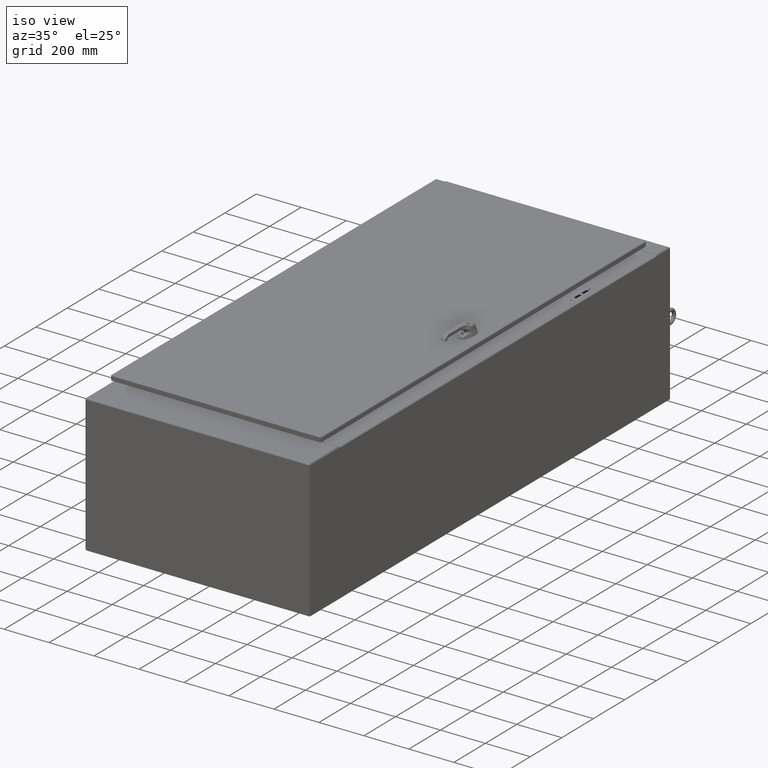
[diagram: clean part render]
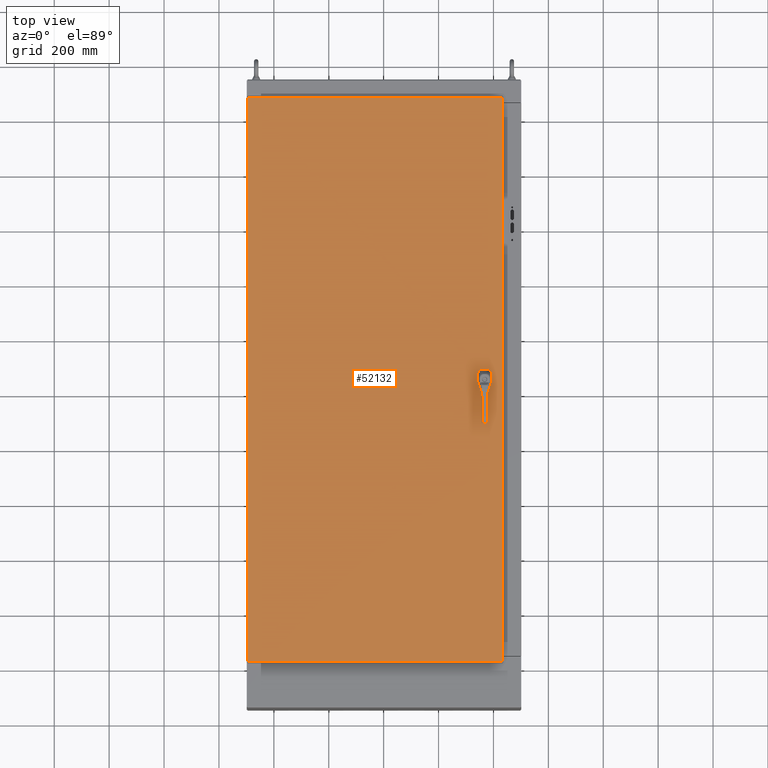
[diagram: tour spotlight — one face highlighted and labeled with its STEP entity id]
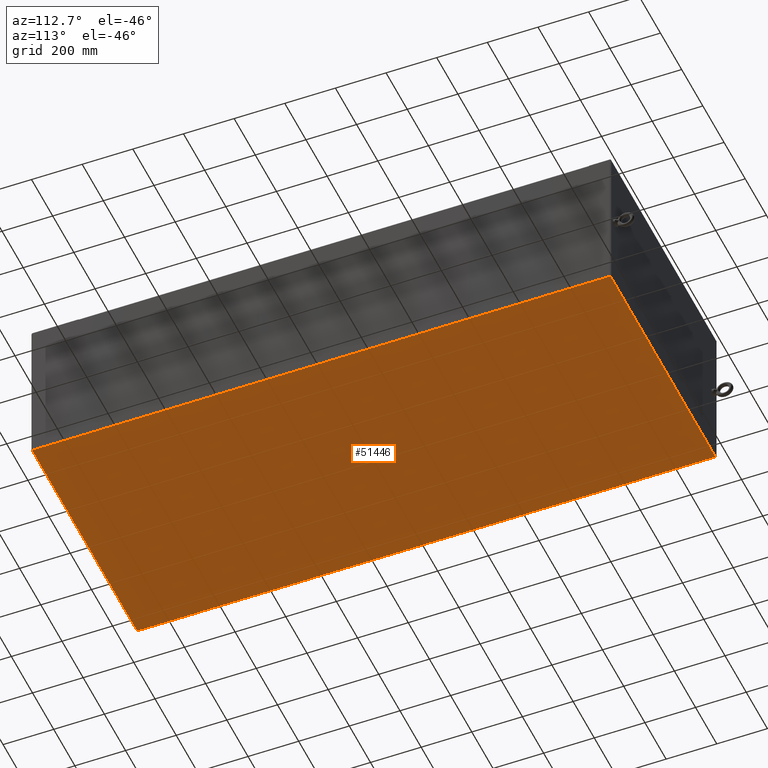
[diagram: tour spotlight — one face highlighted and labeled with its STEP entity id]
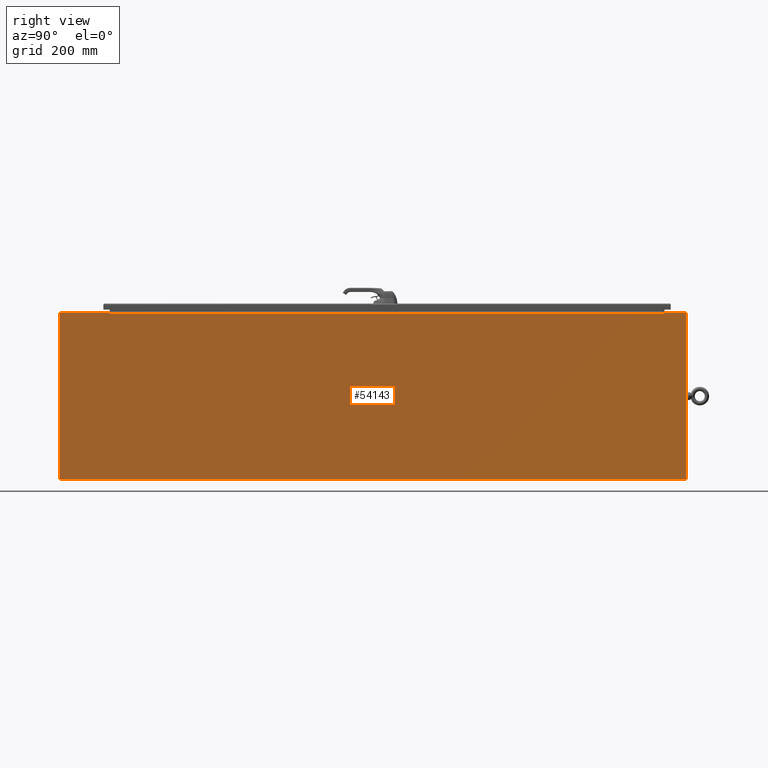
[diagram: tour spotlight — one face highlighted and labeled with its STEP entity id]
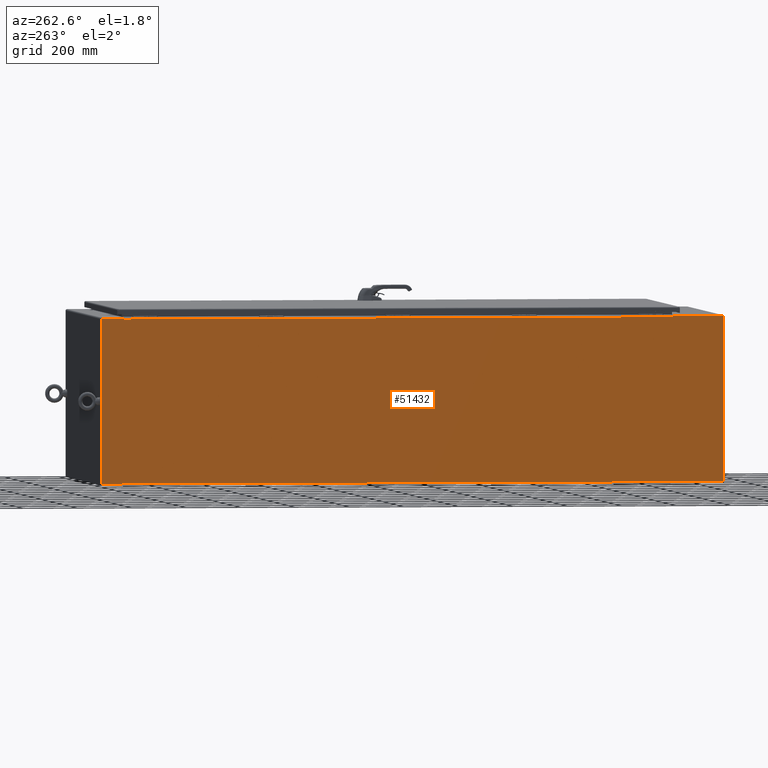
[diagram: tour spotlight — one face highlighted and labeled with its STEP entity id]
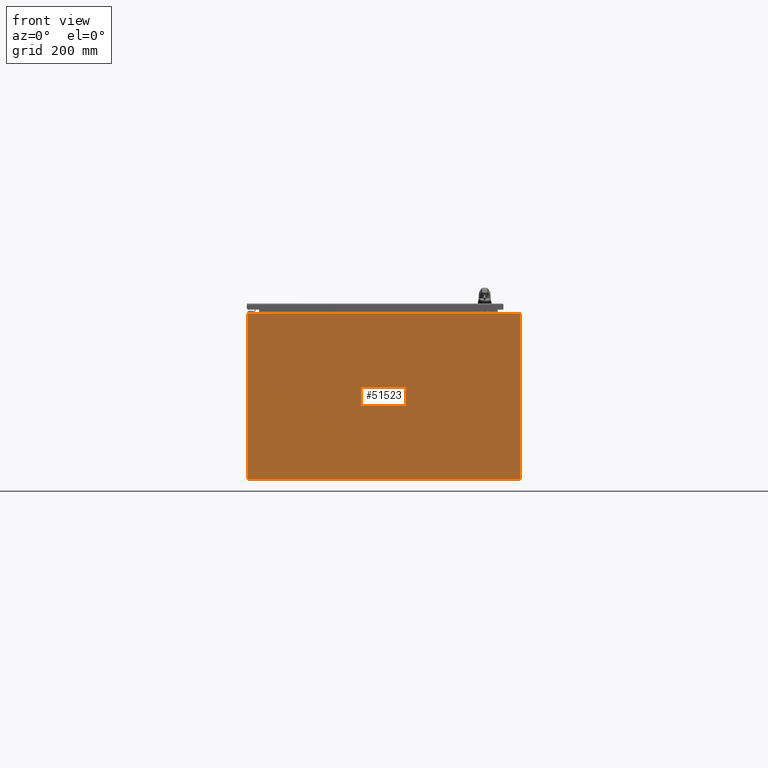
[diagram: tour spotlight — one face highlighted and labeled with its STEP entity id]
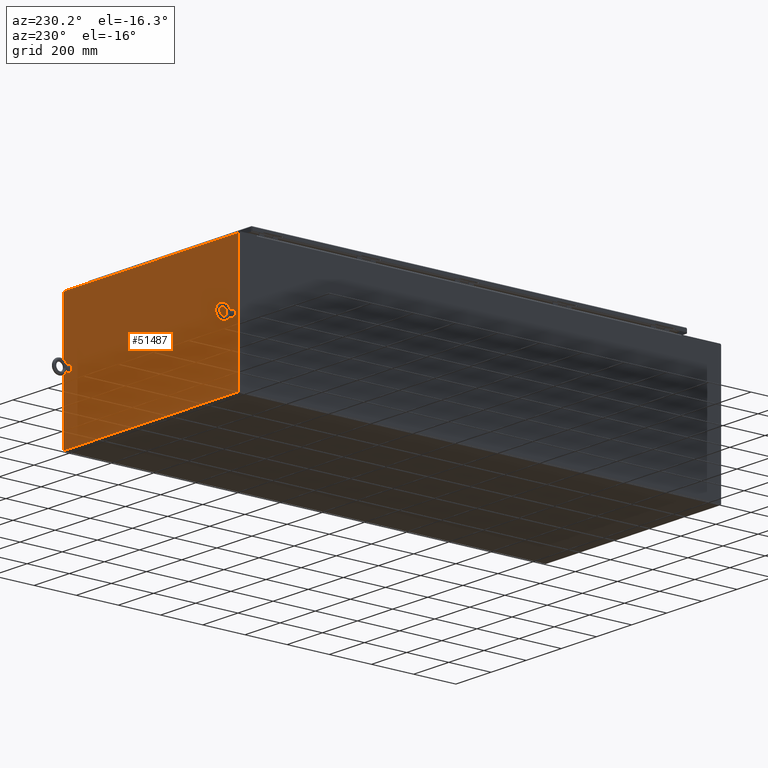
[diagram: tour spotlight — one face highlighted and labeled with its STEP entity id]
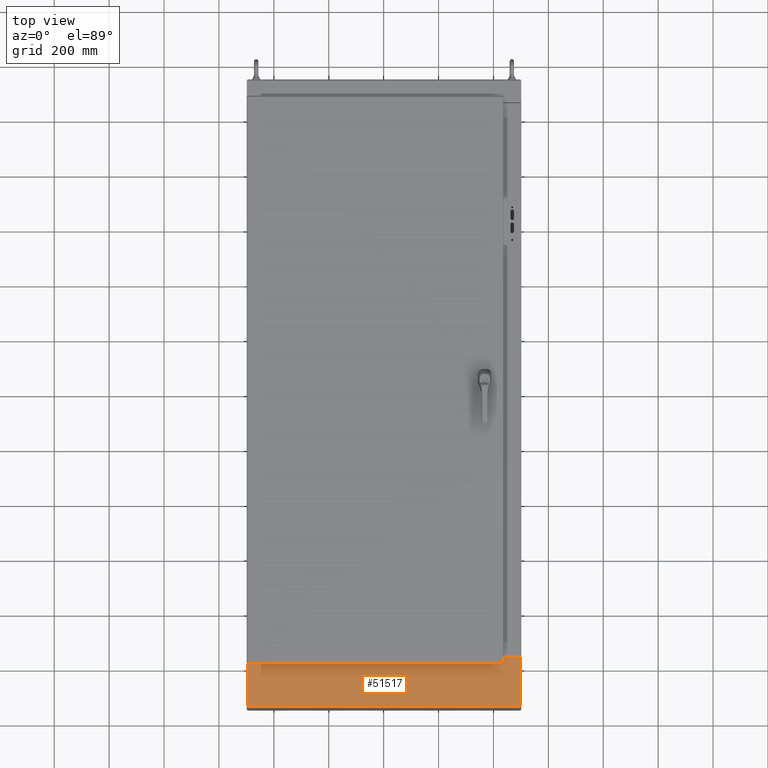
[diagram: tour spotlight — one face highlighted and labeled with its STEP entity id]
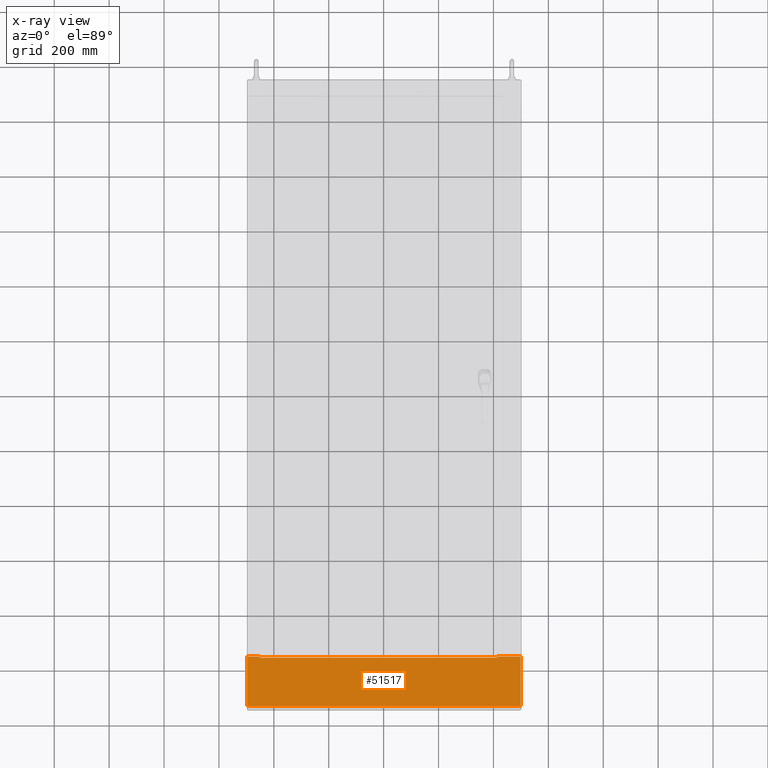
[diagram: x-ray of the same camera — body ghosted, this tour face saturated]
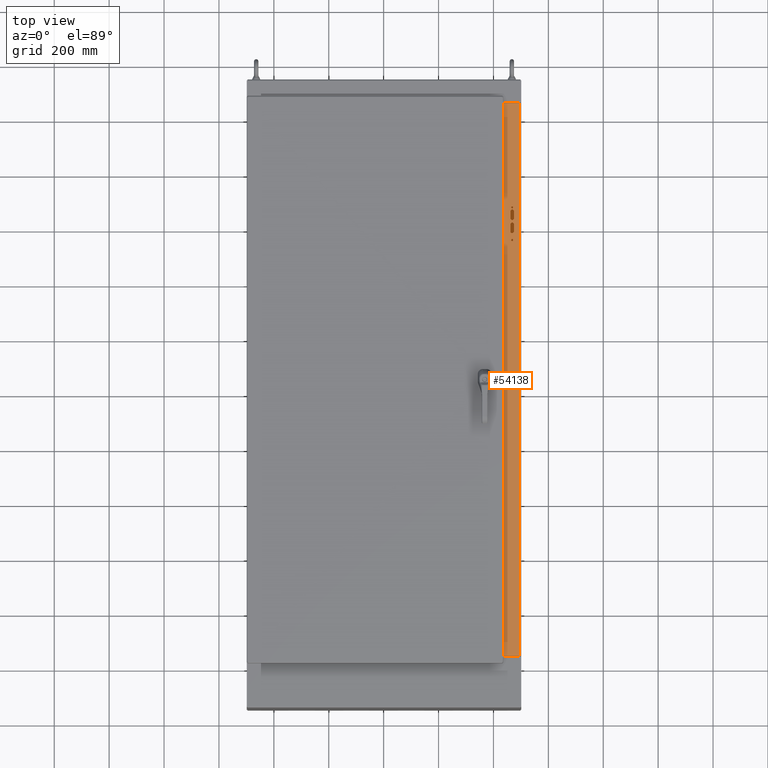
[diagram: tour spotlight — one face highlighted and labeled with its STEP entity id]
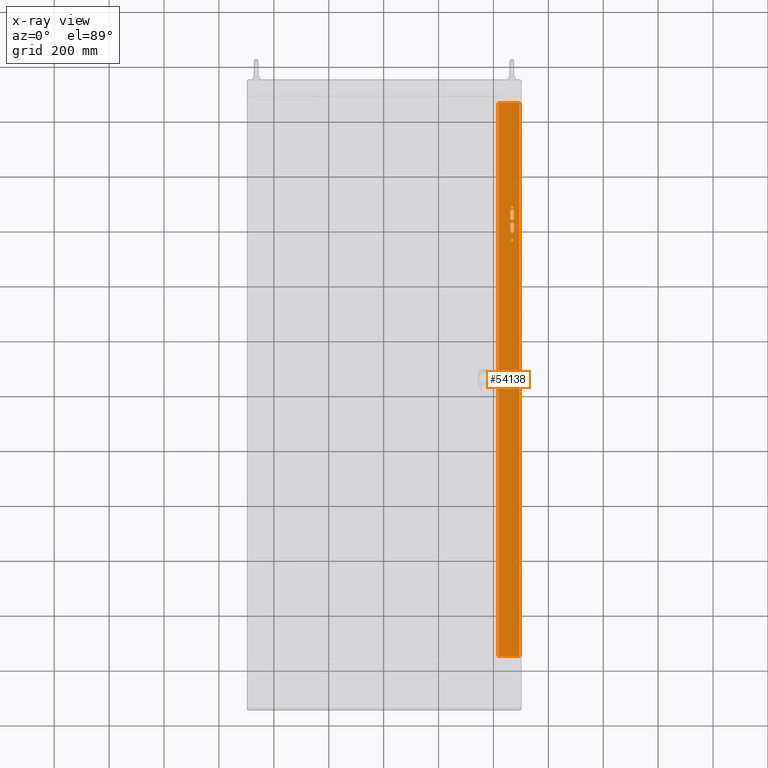
[diagram: x-ray of the same camera — body ghosted, this tour face saturated]
A machine part: a face-by-face anatomy tour. The part has 5560 B-rep faces; the first image is the clean iso view, then the 8 largest visible faces are spotlighted one at a time (largest first), each with its STEP entity span.

Face 1 — top view, entity #52132. In plain terms, the highlighted planar face has unit normal (-0, -0, 1).
Definition (entity closure, byte-faithful):
#3029=FACE_BOUND('',#8426,.T.);
#3030=FACE_BOUND('',#8427,.T.);
#3031=FACE_BOUND('',#8428,.T.);
#3032=FACE_BOUND('',#8429,.T.);
#3583=PLANE('',#57392);
#5145=FACE_OUTER_BOUND('',#8425,.T.);
#8425=EDGE_LOOP('',(#37758,#37759,#37760,#37761));
#8426=EDGE_LOOP('',(#37762));
#8427=EDGE_LOOP('',(#37763));
#8428=EDGE_LOOP('',(#37764));
#8429=EDGE_LOOP('',(#37765,#37766,#37767,#37768,#37769,#37770,#37771,#37772));
#12055=LINE('',#85400,#15710);
#12059=LINE('',#85412,#15714);
#12063=LINE('',#85424,#15718);
#12067=LINE('',#85435,#15722);
#12076=LINE('',#85465,#15731);
#12092=LINE('',#85587,#15747);
#12106=LINE('',#85704,#15761);
#12111=LINE('',#85803,#15766);
#15710=VECTOR('',#65862,0.393700787401575);
#15714=VECTOR('',#65874,0.393700787401575);
#15718=VECTOR('',#65886,0.393700787401575);
#15722=VECTOR('',#65898,0.393700787401575);
#15731=VECTOR('',#65915,0.393700787401575);
#15747=VECTOR('',#65945,0.393700787401575);
#15761=VECTOR('',#65973,0.393700787401575);
#15766=VECTOR('',#65984,0.393700787401575);
#18946=CIRCLE('',#57341,0.1405);
#18948=CIRCLE('',#57344,0.1405);
#18950=CIRCLE('',#57347,0.1405);
#18952=CIRCLE('',#57350,0.453);
#18954=CIRCLE('',#57354,0.453);
#18956=CIRCLE('',#57358,0.453);
#18958=CIRCLE('',#57362,0.453);
#22474=VERTEX_POINT('',#85372);
#22476=VERTEX_POINT('',#85378);
#22478=VERTEX_POINT('',#85384);
#22480=VERTEX_POINT('',#85390);
#22481=VERTEX_POINT('',#85391);
#22484=VERTEX_POINT('',#85399);
#22486=VERTEX_POINT('',#85405);
#22488=VERTEX_POINT('',#85411);
#22490=VERTEX_POINT('',#85417);
#22492=VERTEX_POINT('',#85423);
#22494=VERTEX_POINT('',#85429);
#22501=VERTEX_POINT('',#85453);
#22502=VERTEX_POINT('',#85464);
#22513=VERTEX_POINT('',#85576);
#22521=VERTEX_POINT('',#85693);
#27962=EDGE_CURVE('',#22474,#22474,#18946,.T.);
#27965=EDGE_CURVE('',#22476,#22476,#18948,.T.);
#27968=EDGE_CURVE('',#22478,#22478,#18950,.T.);
#27971=EDGE_CURVE('',#22480,#22481,#18952,.T.);
#27975=EDGE_CURVE('',#22484,#22480,#12055,.T.);
#27978=EDGE_CURVE('',#22486,#22484,#18954,.T.);
#27981=EDGE_CURVE('',#22488,#22486,#12059,.T.);
#27984=EDGE_CURVE('',#22490,#22488,#18956,.T.);
#27987=EDGE_CURVE('',#22492,#22490,#12063,.T.);
#27990=EDGE_CURVE('',#22494,#22492,#18958,.T.);
#27993=EDGE_CURVE('',#22481,#22494,#12067,.T.);
#28003=EDGE_CURVE('',#22502,#22501,#12076,.T.);
#28023=EDGE_CURVE('',#22501,#22513,#12092,.T.);
#28041=EDGE_CURVE('',#22513,#22521,#12106,.T.);
#28050=EDGE_CURVE('',#22521,#22502,#12111,.T.);
#37758=ORIENTED_EDGE('',*,*,#28003,.T.);
#37759=ORIENTED_EDGE('',*,*,#28023,.T.);
#37760=ORIENTED_EDGE('',*,*,#28041,.T.);
#37761=ORIENTED_EDGE('',*,*,#28050,.T.);
#37762=ORIENTED_EDGE('',*,*,#27962,.T.);
#37763=ORIENTED_EDGE('',*,*,#27965,.T.);
#37764=ORIENTED_EDGE('',*,*,#27968,.T.);
#37765=ORIENTED_EDGE('',*,*,#27971,.T.);
#37766=ORIENTED_EDGE('',*,*,#27993,.T.);
#37767=ORIENTED_EDGE('',*,*,#27990,.T.);
#37768=ORIENTED_EDGE('',*,*,#27987,.T.);
#37769=ORIENTED_EDGE('',*,*,#27984,.T.);
#37770=ORIENTED_EDGE('',*,*,#27981,.T.);
#37771=ORIENTED_EDGE('',*,*,#27978,.T.);
#37772=ORIENTED_EDGE('',*,*,#27975,.T.);
#52132=ADVANCED_FACE('',(#5145,#3029,#3030,#3031,#3032),#3583,.T.);
#57341=AXIS2_PLACEMENT_3D('',#85373,#65833,#65834);
#57344=AXIS2_PLACEMENT_3D('',#85379,#65840,#65841);
#57347=AXIS2_PLACEMENT_3D('',#85385,#65847,#65848);
#57350=AXIS2_PLACEMENT_3D('',#85392,#65854,#65855);
#57354=AXIS2_PLACEMENT_3D('',#85406,#65867,#65868);
#57358=AXIS2_PLACEMENT_3D('',#85418,#65879,#65880);
#57362=AXIS2_PLACEMENT_3D('',#85430,#65891,#65892);
#57392=AXIS2_PLACEMENT_3D('',#85906,#66009,#66010);
#65833=DIRECTION('center_axis',(0.,0.,-1.));
#65834=DIRECTION('ref_axis',(-1.,0.,0.));
#65840=DIRECTION('center_axis',(0.,0.,-1.));
#65841=DIRECTION('ref_axis',(-1.,0.,0.));
#65847=DIRECTION('center_axis',(0.,0.,-1.));
#65848=DIRECTION('ref_axis',(-1.,0.,0.));
#65854=DIRECTION('center_axis',(0.,0.,-1.));
#65855=DIRECTION('ref_axis',(-0.883002207505519,-0.469368833158296,0.));
#65862=DIRECTION('',(-1.,0.,0.));
#65867=DIRECTION('center_axis',(0.,0.,-1.));
#65868=DIRECTION('ref_axis',(0.469368833158296,-0.883002207505519,0.));
#65874=DIRECTION('',(0.,-1.,0.));
#65879=DIRECTION('center_axis',(0.,0.,-1.));
#65880=DIRECTION('ref_axis',(0.883002207505519,0.469368833158297,0.));
#65886=DIRECTION('',(1.,-2.055720481263E-16,0.));
#65891=DIRECTION('center_axis',(0.,0.,-1.));
#65892=DIRECTION('ref_axis',(-0.469368833158297,0.883002207505518,0.));
#65898=DIRECTION('',(-4.11144096252601E-16,1.,0.));
#65915=DIRECTION('',(-1.38178790706893E-16,1.,0.));
#65945=DIRECTION('',(-1.,0.,0.));
#65973=DIRECTION('',(2.76357581413786E-16,-1.,0.));
#65984=DIRECTION('',(1.,0.,0.));
#66009=DIRECTION('center_axis',(0.,0.,1.));
#66010=DIRECTION('ref_axis',(1.,0.,0.));
#85372=CARTESIAN_POINT('',(15.85925,-1.377,0.104));
#85373=CARTESIAN_POINT('Origin',(15.71875,-1.377,0.104));
#85378=CARTESIAN_POINT('',(15.85925,0.885,0.104));
#85379=CARTESIAN_POINT('Origin',(15.71875,0.885,0.104));
#85384=CARTESIAN_POINT('',(15.85925,-0.885,0.104));
#85385=CARTESIAN_POINT('Origin',(15.71875,-0.885,0.104));
#85390=CARTESIAN_POINT('',(15.5061259185793,-0.4,0.104));
#85391=CARTESIAN_POINT('',(15.31875,-0.212624081420708,0.104));
#85392=CARTESIAN_POINT('Origin',(15.71875,0.,0.104));
#85399=CARTESIAN_POINT('',(15.9313740814207,-0.4,0.104));
#85400=CARTESIAN_POINT('',(7.96568704071036,-0.4,0.104));
#85405=CARTESIAN_POINT('',(16.11875,-0.212624081420708,0.104));
#85406=CARTESIAN_POINT('Origin',(15.71875,0.,0.104));
#85411=CARTESIAN_POINT('',(16.11875,0.212624081420708,0.104));
#85412=CARTESIAN_POINT('',(16.11875,0.106312040710356,0.104));
#85417=CARTESIAN_POINT('',(15.9313740814207,0.4,0.104));
#85418=CARTESIAN_POINT('Origin',(15.71875,0.,0.104));
#85423=CARTESIAN_POINT('',(15.5061259185793,0.4,0.104));
#85424=CARTESIAN_POINT('',(7.75306295928965,0.400000000000001,0.104));
#85429=CARTESIAN_POINT('',(15.31875,0.212624081420708,0.104));
#85430=CARTESIAN_POINT('Origin',(15.71875,0.,0.104));
#85435=CARTESIAN_POINT('',(15.31875,-0.10631204071035,0.104));
#85453=CARTESIAN_POINT('',(18.2085,40.48975,0.104));
#85464=CARTESIAN_POINT('',(18.2085,-40.48975,0.104));
#85465=CARTESIAN_POINT('',(18.2085,-20.244875,0.104));
#85576=CARTESIAN_POINT('',(-18.2085,40.48975,0.104));
#85587=CARTESIAN_POINT('',(9.10425,40.48975,0.104));
#85693=CARTESIAN_POINT('',(-18.2085,-40.48975,0.104));
#85704=CARTESIAN_POINT('',(-18.2085,20.244875,0.104));
#85803=CARTESIAN_POINT('',(-9.10424999999999,-40.48975,0.104));
#85906=CARTESIAN_POINT('Origin',(1.3987061727561E-15,2.7994968554567E-15,
0.104));

Face 2 — auxiliary view, entity #51446. In plain terms, the highlighted planar face has unit normal (0, 0, 1).
Definition (entity closure, byte-faithful):
#3214=PLANE('',#56060);
#4459=FACE_OUTER_BOUND('',#7643,.T.);
#7643=EDGE_LOOP('',(#34204,#34205,#34206,#34207));
#11082=LINE('',#78075,#14737);
#11088=LINE('',#78093,#14743);
#11091=LINE('',#78099,#14746);
#11092=LINE('',#78100,#14747);
#14737=VECTOR('',#62285,0.393700787401575);
#14743=VECTOR('',#62309,0.393700787401575);
#14746=VECTOR('',#62314,0.393700787401575);
#14747=VECTOR('',#62315,0.393700787401575);
#21351=VERTEX_POINT('',#78072);
#21352=VERTEX_POINT('',#78074);
#21355=VERTEX_POINT('',#78092);
#21357=VERTEX_POINT('',#78098);
#26265=EDGE_CURVE('',#21352,#21351,#11082,.T.);
#26274=EDGE_CURVE('',#21352,#21355,#11088,.T.);
#26277=EDGE_CURVE('',#21357,#21351,#11091,.T.);
#26278=EDGE_CURVE('',#21355,#21357,#11092,.T.);
#34204=ORIENTED_EDGE('',*,*,#26265,.T.);
#34205=ORIENTED_EDGE('',*,*,#26277,.F.);
#34206=ORIENTED_EDGE('',*,*,#26278,.F.);
#34207=ORIENTED_EDGE('',*,*,#26274,.F.);
#51446=ADVANCED_FACE('',(#4459),#3214,.F.);
#56060=AXIS2_PLACEMENT_3D('',#78097,#62312,#62313);
#62285=DIRECTION('',(-3.11110506968894E-16,1.,0.));
#62309=DIRECTION('',(1.,0.,0.));
#62312=DIRECTION('center_axis',(0.,0.,1.));
#62313=DIRECTION('ref_axis',(1.,0.,0.));
#62314=DIRECTION('',(-1.,0.,0.));
#62315=DIRECTION('',(-1.86666304181337E-16,1.,0.));
#78072=CARTESIAN_POINT('',(-19.390875,44.9585,0.));
#78074=CARTESIAN_POINT('',(-19.390875,-44.9585,0.));
#78075=CARTESIAN_POINT('',(-19.390875,-22.47925,0.));
#78092=CARTESIAN_POINT('',(19.6355,-44.9585,0.));
#78093=CARTESIAN_POINT('',(-19.6355,-44.9585,0.));
#78097=CARTESIAN_POINT('Origin',(-2.79741234551221E-15,-5.61215167570438E-15,
0.));
#78098=CARTESIAN_POINT('',(19.6355,44.9585,0.));
#78099=CARTESIAN_POINT('',(19.6355,44.9585,0.));
#78100=CARTESIAN_POINT('',(19.6355,-44.9585,0.));

Face 3 — right view, entity #54143. In plain terms, the highlighted planar face has unit normal (1, 0, 0).
Definition (entity closure, byte-faithful):
#4271=PLANE('',#61360);
#7156=FACE_OUTER_BOUND('',#10563,.T.);
#10563=EDGE_LOOP('',(#47420,#47421,#47422,#47423,#47424,#47425,#47426,#47427,
#47428,#47429,#47430,#47431));
#14183=LINE('',#145768,#17838);
#14189=LINE('',#145786,#17844);
#14192=LINE('',#145793,#17847);
#14196=LINE('',#145800,#17851);
#14198=LINE('',#145804,#17853);
#14199=LINE('',#145806,#17854);
#14200=LINE('',#145808,#17855);
#14201=LINE('',#145810,#17856);
#14202=LINE('',#145812,#17857);
#14203=LINE('',#145814,#17858);
#14204=LINE('',#145816,#17859);
#14205=LINE('',#145817,#17860);
#17838=VECTOR('',#75982,0.393700787401575);
#17844=VECTOR('',#76006,0.393700787401575);
#17847=VECTOR('',#76011,0.393700787401575);
#17851=VECTOR('',#76017,0.393700787401575);
#17853=VECTOR('',#76021,0.393700787401575);
#17854=VECTOR('',#76022,0.393700787401575);
#17855=VECTOR('',#76023,0.393700787401575);
#17856=VECTOR('',#76024,0.393700787401575);
#17857=VECTOR('',#76025,0.393700787401575);
#17858=VECTOR('',#76026,0.393700787401575);
#17859=VECTOR('',#76027,0.393700787401575);
#17860=VECTOR('',#76028,0.393700787401575);
#25453=VERTEX_POINT('',#145765);
#25454=VERTEX_POINT('',#145767);
#25457=VERTEX_POINT('',#145785);
#25459=VERTEX_POINT('',#145791);
#25460=VERTEX_POINT('',#145792);
#25463=VERTEX_POINT('',#145803);
#25464=VERTEX_POINT('',#145805);
#25465=VERTEX_POINT('',#145807);
#25466=VERTEX_POINT('',#145809);
#25467=VERTEX_POINT('',#145811);
#25468=VERTEX_POINT('',#145813);
#25469=VERTEX_POINT('',#145815);
#32869=EDGE_CURVE('',#25454,#25453,#14183,.T.);
#32878=EDGE_CURVE('',#25457,#25454,#14189,.T.);
#32881=EDGE_CURVE('',#25459,#25460,#14192,.T.);
#32885=EDGE_CURVE('',#25460,#25457,#14196,.T.);
#32887=EDGE_CURVE('',#25453,#25463,#14198,.T.);
#32888=EDGE_CURVE('',#25463,#25464,#14199,.T.);
#32889=EDGE_CURVE('',#25464,#25465,#14200,.T.);
#32890=EDGE_CURVE('',#25466,#25465,#14201,.T.);
#32891=EDGE_CURVE('',#25467,#25466,#14202,.T.);
#32892=EDGE_CURVE('',#25468,#25467,#14203,.T.);
#32893=EDGE_CURVE('',#25469,#25468,#14204,.T.);
#32894=EDGE_CURVE('',#25459,#25469,#14205,.T.);
#47420=ORIENTED_EDGE('',*,*,#32881,.T.);
#47421=ORIENTED_EDGE('',*,*,#32885,.T.);
#47422=ORIENTED_EDGE('',*,*,#32878,.T.);
#47423=ORIENTED_EDGE('',*,*,#32869,.T.);
#47424=ORIENTED_EDGE('',*,*,#32887,.T.);
#47425=ORIENTED_EDGE('',*,*,#32888,.T.);
#47426=ORIENTED_EDGE('',*,*,#32889,.T.);
#47427=ORIENTED_EDGE('',*,*,#32890,.F.);
#47428=ORIENTED_EDGE('',*,*,#32891,.F.);
#47429=ORIENTED_EDGE('',*,*,#32892,.F.);
#47430=ORIENTED_EDGE('',*,*,#32893,.F.);
#47431=ORIENTED_EDGE('',*,*,#32894,.F.);
#54143=ADVANCED_FACE('',(#7156),#4271,.T.);
#61360=AXIS2_PLACEMENT_3D('',#145802,#76019,#76020);
#75982=DIRECTION('',(-7.04859803593627E-17,-1.,0.));
#76006=DIRECTION('',(-1.,0.,0.));
#76011=DIRECTION('',(1.,0.,0.));
#76017=DIRECTION('',(0.,-1.,0.));
#76019=DIRECTION('center_axis',(0.,0.,1.));
#76020=DIRECTION('ref_axis',(1.,0.,0.));
#76021=DIRECTION('',(1.,0.,0.));
#76022=DIRECTION('',(0.,-1.,0.));
#76023=DIRECTION('',(-1.,0.,0.));
#76024=DIRECTION('',(6.22221013937788E-17,1.,0.));
#76025=DIRECTION('',(-1.,0.,0.));
#76026=DIRECTION('',(4.66665760453341E-17,-1.,0.));
#76027=DIRECTION('',(1.,2.33926691935628E-16,0.));
#76028=DIRECTION('',(6.22221013937788E-17,1.,0.));
#145765=CARTESIAN_POINT('',(-11.817875,-37.6875,0.104));
#145767=CARTESIAN_POINT('',(-11.817875,41.6875,0.104));
#145768=CARTESIAN_POINT('',(-11.817875,20.84375,0.104));
#145785=CARTESIAN_POINT('',(-11.817675,41.6875,0.104));
#145786=CARTESIAN_POINT('',(-5.9088375,41.6875,0.104));
#145791=CARTESIAN_POINT('',(-11.9585,41.6877,0.104));
#145792=CARTESIAN_POINT('',(-11.817675,41.6877,0.104));
#145793=CARTESIAN_POINT('',(-5.97925,41.6877,0.104));
#145800=CARTESIAN_POINT('',(-11.817675,20.84385,0.104));
#145802=CARTESIAN_POINT('Origin',(2.09805925913415E-15,-1.27074044312181E-14,
0.104));
#145803=CARTESIAN_POINT('',(-11.817675,-37.6875,0.104));
#145804=CARTESIAN_POINT('',(-5.97925,-37.6875,0.104));
#145805=CARTESIAN_POINT('',(-11.817675,-37.6877,0.104));
#145806=CARTESIAN_POINT('',(-11.817675,-18.84375,0.104));
#145807=CARTESIAN_POINT('',(-11.9585,-37.6877,0.104));
#145808=CARTESIAN_POINT('',(-5.9088375,-37.6877,0.104));
#145809=CARTESIAN_POINT('',(-11.9585,-44.9585,0.104));
#145810=CARTESIAN_POINT('',(-11.9585,-44.9585,0.104));
#145811=CARTESIAN_POINT('',(11.9585,-44.9585,0.104));
#145812=CARTESIAN_POINT('',(11.9585,-44.9585,0.104));
#145813=CARTESIAN_POINT('',(11.9585,44.9585,0.104));
#145814=CARTESIAN_POINT('',(11.9585,44.9585,0.104));
#145815=CARTESIAN_POINT('',(-11.9585,44.9585,0.104));
#145816=CARTESIAN_POINT('',(-11.9585,44.9585,0.104));
#145817=CARTESIAN_POINT('',(-11.9585,-44.9585,0.104));

Face 4 — auxiliary view, entity #51432. In plain terms, the highlighted planar face has unit normal (1, 0, 0).
Definition (entity closure, byte-faithful):
#3202=PLANE('',#56042);
#4445=FACE_OUTER_BOUND('',#7629,.T.);
#7629=EDGE_LOOP('',(#34132,#34133,#34134,#34135,#34136,#34137,#34138,#34139,
#34140,#34141,#34142,#34143));
#11046=LINE('',#77995,#14701);
#11052=LINE('',#78013,#14707);
#11055=LINE('',#78020,#14710);
#11059=LINE('',#78027,#14714);
#11061=LINE('',#78031,#14716);
#11062=LINE('',#78033,#14717);
#11063=LINE('',#78035,#14718);
#11064=LINE('',#78037,#14719);
#11065=LINE('',#78039,#14720);
#11066=LINE('',#78041,#14721);
#11067=LINE('',#78043,#14722);
#11068=LINE('',#78044,#14723);
#14701=VECTOR('',#62209,0.393700787401575);
#14707=VECTOR('',#62233,0.393700787401575);
#14710=VECTOR('',#62238,0.393700787401575);
#14714=VECTOR('',#62244,0.393700787401575);
#14716=VECTOR('',#62248,0.393700787401575);
#14717=VECTOR('',#62249,0.393700787401575);
#14718=VECTOR('',#62250,0.393700787401575);
#14719=VECTOR('',#62251,0.393700787401575);
#14720=VECTOR('',#62252,0.393700787401575);
#14721=VECTOR('',#62253,0.393700787401575);
#14722=VECTOR('',#62254,0.179625000000001);
#14723=VECTOR('',#62255,0.393700787401575);
#21327=VERTEX_POINT('',#77992);
#21328=VERTEX_POINT('',#77994);
#21331=VERTEX_POINT('',#78012);
#21333=VERTEX_POINT('',#78018);
#21334=VERTEX_POINT('',#78019);
#21337=VERTEX_POINT('',#78030);
#21338=VERTEX_POINT('',#78032);
#21339=VERTEX_POINT('',#78034);
#21340=VERTEX_POINT('',#78036);
#21341=VERTEX_POINT('',#78038);
#21342=VERTEX_POINT('',#78040);
#21343=VERTEX_POINT('',#78042);
#26225=EDGE_CURVE('',#21328,#21327,#11046,.T.);
#26234=EDGE_CURVE('',#21331,#21328,#11052,.T.);
#26237=EDGE_CURVE('',#21333,#21334,#11055,.T.);
#26241=EDGE_CURVE('',#21334,#21331,#11059,.T.);
#26243=EDGE_CURVE('',#21327,#21337,#11061,.T.);
#26244=EDGE_CURVE('',#21337,#21338,#11062,.T.);
#26245=EDGE_CURVE('',#21338,#21339,#11063,.T.);
#26246=EDGE_CURVE('',#21340,#21339,#11064,.T.);
#26247=EDGE_CURVE('',#21341,#21340,#11065,.T.);
#26248=EDGE_CURVE('',#21341,#21342,#11066,.T.);
#26249=EDGE_CURVE('',#21343,#21342,#11067,.T.);
#26250=EDGE_CURVE('',#21333,#21343,#11068,.T.);
#34132=ORIENTED_EDGE('',*,*,#26237,.T.);
#34133=ORIENTED_EDGE('',*,*,#26241,.T.);
#34134=ORIENTED_EDGE('',*,*,#26234,.T.);
#34135=ORIENTED_EDGE('',*,*,#26225,.T.);
#34136=ORIENTED_EDGE('',*,*,#26243,.T.);
#34137=ORIENTED_EDGE('',*,*,#26244,.T.);
#34138=ORIENTED_EDGE('',*,*,#26245,.T.);
#34139=ORIENTED_EDGE('',*,*,#26246,.F.);
#34140=ORIENTED_EDGE('',*,*,#26247,.F.);
#34141=ORIENTED_EDGE('',*,*,#26248,.T.);
#34142=ORIENTED_EDGE('',*,*,#26249,.F.);
#34143=ORIENTED_EDGE('',*,*,#26250,.F.);
#51432=ADVANCED_FACE('',(#4445),#3202,.F.);
#56042=AXIS2_PLACEMENT_3D('',#78029,#62246,#62247);
#62209=DIRECTION('',(-3.11328633325945E-16,1.,3.17186911617132E-16));
#62233=DIRECTION('',(-5.40924653634275E-15,0.,1.));
#62238=DIRECTION('',(5.40924653634275E-15,0.,-1.));
#62244=DIRECTION('',(-3.11328633325944E-16,1.,0.));
#62246=DIRECTION('center_axis',(1.,3.11328633325944E-16,5.40924653634275E-15));
#62247=DIRECTION('ref_axis',(5.40924653634275E-15,-3.11110506968892E-16,
-1.));
#62248=DIRECTION('',(5.40924653634275E-15,0.,-1.));
#62249=DIRECTION('',(-3.11328633325944E-16,1.,0.));
#62250=DIRECTION('',(-5.40924653634275E-15,0.,1.));
#62251=DIRECTION('',(3.11110506968896E-16,-1.,-3.11110506968894E-16));
#62252=DIRECTION('',(-5.39030285815812E-15,-1.62702561701834E-30,1.));
#62253=DIRECTION('',(3.11328633325944E-16,-1.,1.17576712584353E-33));
#62254=DIRECTION('',(5.32907051820075E-15,3.11110506968896E-16,-1.));
#62255=DIRECTION('',(3.11110506968896E-16,-1.,-3.11110506968894E-16));
#77992=CARTESIAN_POINT('',(-19.6355000000001,41.6875,23.880375));
#77994=CARTESIAN_POINT('',(-19.6355000000001,-37.6875,23.880375));
#77995=CARTESIAN_POINT('',(-19.6355000000001,-18.84375,23.880375));
#78012=CARTESIAN_POINT('',(-19.6355000000001,-37.6875,23.880175));
#78013=CARTESIAN_POINT('',(-19.6355000000001,-37.6875,17.9359551774499));
#78018=CARTESIAN_POINT('',(-19.6355000000001,-37.6877,24.021));
#78019=CARTESIAN_POINT('',(-19.6355000000001,-37.6877,23.880175));
#78020=CARTESIAN_POINT('',(-19.6355000000001,-37.6877,18.0063676774499));
#78027=CARTESIAN_POINT('',(-19.6355000000001,-18.84385,23.880175));
#78029=CARTESIAN_POINT('Origin',(-19.6355000000001,-1.2291463902135E-15,
11.9917353548998));
#78030=CARTESIAN_POINT('',(-19.6355000000001,41.6875,23.880175));
#78031=CARTESIAN_POINT('',(-19.6355000000001,41.6875,18.0063676774499));
#78032=CARTESIAN_POINT('',(-19.6355000000001,41.6877,23.880175));
#78033=CARTESIAN_POINT('',(-19.6355000000001,20.84375,23.880175));
#78034=CARTESIAN_POINT('',(-19.6355000000001,41.6877,24.021));
#78035=CARTESIAN_POINT('',(-19.6355000000001,41.6877,17.9359551774499));
#78036=CARTESIAN_POINT('',(-19.6355000000001,44.9585,24.021));
#78037=CARTESIAN_POINT('',(-19.6355000000001,44.9585,24.021));
#78038=CARTESIAN_POINT('',(-19.6355,44.9585,0.244625));
#78039=CARTESIAN_POINT('',(-19.6355,44.9585,0.244625000000027));
#78040=CARTESIAN_POINT('',(-19.6355,-44.9585,0.244625));
#78041=CARTESIAN_POINT('',(-19.6355,-6.52632988096976E-16,0.244624999999997));
#78042=CARTESIAN_POINT('',(-19.6355000000001,-44.9585,24.021));
#78043=CARTESIAN_POINT('',(-19.6355,-44.9585,-0.319683580401069));
#78044=CARTESIAN_POINT('',(-19.6355000000001,44.9585,24.021));

Face 5 — front view, entity #51523. In plain terms, the highlighted planar face has unit normal (-0, 1, -0).
Definition (entity closure, byte-faithful):
#3273=PLANE('',#56175);
#4536=FACE_OUTER_BOUND('',#7724,.T.);
#7724=EDGE_LOOP('',(#34636,#34637,#34638,#34639));
#11206=LINE('',#78380,#14861);
#11263=LINE('',#78519,#14918);
#11267=LINE('',#78528,#14922);
#11269=LINE('',#78532,#14924);
#14861=VECTOR('',#62569,0.393700787401575);
#14918=VECTOR('',#62704,0.393700787401575);
#14922=VECTOR('',#62714,0.393700787401575);
#14924=VECTOR('',#62720,0.393700787401575);
#21452=VERTEX_POINT('',#78377);
#21453=VERTEX_POINT('',#78379);
#21495=VERTEX_POINT('',#78516);
#21496=VERTEX_POINT('',#78518);
#26413=EDGE_CURVE('',#21452,#21453,#11206,.T.);
#26484=EDGE_CURVE('',#21495,#21496,#11263,.T.);
#26489=EDGE_CURVE('',#21495,#21453,#11267,.T.);
#26491=EDGE_CURVE('',#21496,#21452,#11269,.T.);
#34636=ORIENTED_EDGE('',*,*,#26489,.T.);
#34637=ORIENTED_EDGE('',*,*,#26413,.F.);
#34638=ORIENTED_EDGE('',*,*,#26491,.F.);
#34639=ORIENTED_EDGE('',*,*,#26484,.F.);
#51523=ADVANCED_FACE('',(#4536),#3273,.F.);
#56175=AXIS2_PLACEMENT_3D('',#78533,#62721,#62722);
#62569=DIRECTION('',(-2.33926691935628E-16,1.,0.));
#62704=DIRECTION('',(3.06161699786838E-16,-1.,0.));
#62714=DIRECTION('',(1.,7.14226860753238E-17,0.));
#62720=DIRECTION('',(1.,0.,0.));
#62721=DIRECTION('center_axis',(0.,0.,1.));
#62722=DIRECTION('ref_axis',(1.,0.,0.));
#78377=CARTESIAN_POINT('',(39.167,0.,0.));
#78379=CARTESIAN_POINT('',(39.167,23.776375,0.));
#78380=CARTESIAN_POINT('',(39.167,0.,0.));
#78516=CARTESIAN_POINT('',(1.00438152293427E-17,23.776375,0.));
#78518=CARTESIAN_POINT('',(0.,0.,0.));
#78519=CARTESIAN_POINT('',(-7.32246937380181E-15,23.917,0.));
#78528=CARTESIAN_POINT('',(9.79175,23.776375,0.));
#78532=CARTESIAN_POINT('',(0.,0.,0.));
#78533=CARTESIAN_POINT('Origin',(19.5835,11.9585,0.));

Face 6 — auxiliary view, entity #51487. In plain terms, the highlighted planar face has unit normal (0, -1, -0).
Definition (entity closure, byte-faithful):
#2935=FACE_BOUND('',#7687,.T.);
#2936=FACE_BOUND('',#7688,.T.);
#3245=PLANE('',#56122);
#4500=FACE_OUTER_BOUND('',#7686,.T.);
#7686=EDGE_LOOP('',(#34430,#34431,#34432,#34433));
#7687=EDGE_LOOP('',(#34434));
#7688=EDGE_LOOP('',(#34435));
#11120=LINE('',#78173,#14775);
#11177=LINE('',#78312,#14832);
#11181=LINE('',#78321,#14836);
#11183=LINE('',#78325,#14838);
#14775=VECTOR('',#62377,0.393700787401575);
#14832=VECTOR('',#62512,0.393700787401575);
#14836=VECTOR('',#62522,0.393700787401575);
#14838=VECTOR('',#62528,0.393700787401575);
#18348=CIRCLE('',#56066,0.40625);
#18350=CIRCLE('',#56069,0.40625);
#21359=VERTEX_POINT('',#78110);
#21361=VERTEX_POINT('',#78116);
#21384=VERTEX_POINT('',#78170);
#21385=VERTEX_POINT('',#78172);
#21427=VERTEX_POINT('',#78309);
#21428=VERTEX_POINT('',#78311);
#26282=EDGE_CURVE('',#21359,#21359,#18348,.T.);
#26285=EDGE_CURVE('',#21361,#21361,#18350,.T.);
#26311=EDGE_CURVE('',#21384,#21385,#11120,.T.);
#26382=EDGE_CURVE('',#21427,#21428,#11177,.T.);
#26387=EDGE_CURVE('',#21427,#21385,#11181,.T.);
#26389=EDGE_CURVE('',#21428,#21384,#11183,.T.);
#34430=ORIENTED_EDGE('',*,*,#26387,.T.);
#34431=ORIENTED_EDGE('',*,*,#26311,.F.);
#34432=ORIENTED_EDGE('',*,*,#26389,.F.);
#34433=ORIENTED_EDGE('',*,*,#26382,.F.);
#34434=ORIENTED_EDGE('',*,*,#26282,.T.);
#34435=ORIENTED_EDGE('',*,*,#26285,.T.);
#51487=ADVANCED_FACE('',(#4500,#2935,#2936),#3245,.F.);
#56066=AXIS2_PLACEMENT_3D('',#78111,#62329,#62330);
#56069=AXIS2_PLACEMENT_3D('',#78117,#62336,#62337);
#56122=AXIS2_PLACEMENT_3D('',#78326,#62529,#62530);
#62329=DIRECTION('center_axis',(0.,0.,1.));
#62330=DIRECTION('ref_axis',(1.,0.,0.));
#62336=DIRECTION('center_axis',(0.,0.,1.));
#62337=DIRECTION('ref_axis',(1.,0.,0.));
#62377=DIRECTION('',(-2.33926691935628E-16,1.,0.));
#62512=DIRECTION('',(3.06161699786838E-16,-1.,0.));
#62522=DIRECTION('',(1.,7.14226860753238E-17,0.));
#62528=DIRECTION('',(1.,0.,0.));
#62529=DIRECTION('center_axis',(0.,0.,1.));
#62530=DIRECTION('ref_axis',(1.,0.,0.));
#78110=CARTESIAN_POINT('',(0.84375,11.9585,0.));
#78111=CARTESIAN_POINT('Origin',(1.25,11.9585,0.));
#78116=CARTESIAN_POINT('',(37.51075,11.9585,0.));
#78117=CARTESIAN_POINT('Origin',(37.917,11.9585,0.));
#78170=CARTESIAN_POINT('',(39.167,0.,0.));
#78172=CARTESIAN_POINT('',(39.167,23.776375,0.));
#78173=CARTESIAN_POINT('',(39.167,0.,0.));
#78309=CARTESIAN_POINT('',(1.00438152293427E-17,23.776375,0.));
#78311=CARTESIAN_POINT('',(0.,0.,0.));
#78312=CARTESIAN_POINT('',(-7.32246937380181E-15,23.917,0.));
#78321=CARTESIAN_POINT('',(9.79175,23.776375,0.));
#78325=CARTESIAN_POINT('',(0.,0.,0.));
#78326=CARTESIAN_POINT('Origin',(19.5835,11.9585,0.));

Face 7 — top view, entity #51517. An x-ray twin of the same camera follows (body ghosted, this face saturated) — the face is partly hidden behind the body. In plain terms, the highlighted planar face has unit normal (-0, 0, 1).
Definition (entity closure, byte-faithful):
#3269=PLANE('',#56167);
#4530=FACE_OUTER_BOUND('',#7718,.T.);
#7718=EDGE_LOOP('',(#34600,#34601,#34602,#34603,#34604,#34605,#34606,#34607,
#34608,#34609,#34610,#34611));
#11184=LINE('',#78331,#14839);
#11196=LINE('',#78358,#14851);
#11207=LINE('',#78383,#14862);
#11218=LINE('',#78404,#14873);
#11243=LINE('',#78463,#14898);
#11248=LINE('',#78481,#14903);
#11256=LINE('',#78501,#14911);
#11257=LINE('',#78504,#14912);
#11258=LINE('',#78507,#14913);
#11260=LINE('',#78510,#14915);
#11261=LINE('',#78513,#14916);
#11262=LINE('',#78514,#14917);
#14839=VECTOR('',#62535,0.393700787401575);
#14851=VECTOR('',#62553,0.393700787401575);
#14862=VECTOR('',#62572,0.393700787401575);
#14873=VECTOR('',#62587,0.393700787401575);
#14898=VECTOR('',#62636,0.393700787401575);
#14903=VECTOR('',#62655,0.393700787401575);
#14911=VECTOR('',#62683,0.393700787401575);
#14912=VECTOR('',#62688,0.393700787401575);
#14913=VECTOR('',#62691,0.393700787401575);
#14915=VECTOR('',#62695,0.393700787401575);
#14916=VECTOR('',#62698,0.393700787401575);
#14917=VECTOR('',#62699,0.393700787401575);
#21431=VERTEX_POINT('',#78329);
#21432=VERTEX_POINT('',#78330);
#21443=VERTEX_POINT('',#78356);
#21444=VERTEX_POINT('',#78357);
#21454=VERTEX_POINT('',#78381);
#21462=VERTEX_POINT('',#78402);
#21483=VERTEX_POINT('',#78460);
#21484=VERTEX_POINT('',#78462);
#21489=VERTEX_POINT('',#78478);
#21490=VERTEX_POINT('',#78480);
#21493=VERTEX_POINT('',#78506);
#21494=VERTEX_POINT('',#78512);
#26390=EDGE_CURVE('',#21431,#21432,#11184,.T.);
#26402=EDGE_CURVE('',#21443,#21444,#11196,.T.);
#26415=EDGE_CURVE('',#21432,#21454,#11207,.T.);
#26426=EDGE_CURVE('',#21444,#21462,#11218,.T.);
#26457=EDGE_CURVE('',#21484,#21483,#11243,.T.);
#26466=EDGE_CURVE('',#21490,#21489,#11248,.T.);
#26476=EDGE_CURVE('',#21489,#21484,#11256,.T.);
#26477=EDGE_CURVE('',#21462,#21490,#11257,.T.);
#26478=EDGE_CURVE('',#21483,#21493,#11258,.T.);
#26480=EDGE_CURVE('',#21493,#21431,#11260,.T.);
#26481=EDGE_CURVE('',#21494,#21454,#11261,.T.);
#26482=EDGE_CURVE('',#21494,#21443,#11262,.T.);
#34600=ORIENTED_EDGE('',*,*,#26390,.T.);
#34601=ORIENTED_EDGE('',*,*,#26415,.T.);
#34602=ORIENTED_EDGE('',*,*,#26481,.F.);
#34603=ORIENTED_EDGE('',*,*,#26482,.T.);
#34604=ORIENTED_EDGE('',*,*,#26402,.T.);
#34605=ORIENTED_EDGE('',*,*,#26426,.T.);
#34606=ORIENTED_EDGE('',*,*,#26477,.T.);
#34607=ORIENTED_EDGE('',*,*,#26466,.T.);
#34608=ORIENTED_EDGE('',*,*,#26476,.T.);
#34609=ORIENTED_EDGE('',*,*,#26457,.T.);
#34610=ORIENTED_EDGE('',*,*,#26478,.T.);
#34611=ORIENTED_EDGE('',*,*,#26480,.T.);
#51517=ADVANCED_FACE('',(#4530),#3269,.T.);
#56167=AXIS2_PLACEMENT_3D('',#78511,#62696,#62697);
#62535=DIRECTION('',(1.,7.14226860753238E-17,-4.56636659303455E-15));
#62553=DIRECTION('',(1.,7.14226860753238E-17,-4.6939463024642E-15));
#62572=DIRECTION('',(0.,0.,-1.));
#62587=DIRECTION('',(0.,0.,-1.));
#62636=DIRECTION('',(0.,0.,-1.));
#62655=DIRECTION('',(0.,0.,1.));
#62683=DIRECTION('',(1.,7.14226860753238E-17,0.));
#62688=DIRECTION('',(1.,7.14226860753238E-17,0.));
#62691=DIRECTION('',(1.,7.14226860753238E-17,0.));
#62695=DIRECTION('',(0.,0.,1.));
#62696=DIRECTION('center_axis',(-7.14226860753237E-17,1.,0.));
#62697=DIRECTION('ref_axis',(0.,0.,1.));
#62698=DIRECTION('',(1.,5.85962673823239E-45,7.14226860753238E-17));
#62699=DIRECTION('',(0.,0.,1.));
#78329=CARTESIAN_POINT('',(37.3962,24.021,7.323));
#78330=CARTESIAN_POINT('',(39.167,24.021,7.32299999999999));
#78331=CARTESIAN_POINT('',(38.2816,24.021,7.323));
#78356=CARTESIAN_POINT('',(4.96541531998072E-15,24.021,7.32300000000009));
#78357=CARTESIAN_POINT('',(3.3958,24.021,7.32300000000007));
#78358=CARTESIAN_POINT('',(19.5835,24.021,7.32299999999999));
#78381=CARTESIAN_POINT('',(39.167,24.021,0.244624999999993));
#78383=CARTESIAN_POINT('',(39.167,24.021,7.375));
#78402=CARTESIAN_POINT('',(3.3958,24.021,7.17705));
#78404=CARTESIAN_POINT('',(3.3958,24.021,3.7395));
#78460=CARTESIAN_POINT('',(37.396,24.021,7.17705));
#78462=CARTESIAN_POINT('',(37.396,24.021,7.17725));
#78463=CARTESIAN_POINT('',(37.396,24.021,3.7395));
#78478=CARTESIAN_POINT('',(3.396,24.021,7.17725));
#78480=CARTESIAN_POINT('',(3.396,24.021,7.17705));
#78481=CARTESIAN_POINT('',(3.396,24.021,3.640525));
#78501=CARTESIAN_POINT('',(38.2815,24.021,7.17725));
#78504=CARTESIAN_POINT('',(21.2814,24.021,7.17705));
#78506=CARTESIAN_POINT('',(37.3962,24.021,7.17705));
#78507=CARTESIAN_POINT('',(38.2815,24.021,7.17705));
#78510=CARTESIAN_POINT('',(37.3962,24.021,3.640525));
#78511=CARTESIAN_POINT('Origin',(39.167,24.021,0.104));
#78512=CARTESIAN_POINT('',(-1.05928771285465E-17,24.021,0.244624999999989));
#78513=CARTESIAN_POINT('',(39.167,24.021,0.244624999999988));
#78514=CARTESIAN_POINT('',(-5.59482469102441E-15,24.021,7.375));

Face 8 — top view, entity #54138. An x-ray twin of the same camera follows (body ghosted, this face saturated) — the face is partly hidden behind the body. In plain terms, the highlighted planar face has unit normal (0, 0, 1).
Definition (entity closure, byte-faithful):
#3152=FACE_BOUND('',#10555,.T.);
#3153=FACE_BOUND('',#10556,.T.);
#3154=FACE_BOUND('',#10557,.T.);
#3155=FACE_BOUND('',#10558,.T.);
#4267=PLANE('',#61355);
#7151=FACE_OUTER_BOUND('',#10554,.T.);
#10554=EDGE_LOOP('',(#47390,#47391,#47392,#47393));
#10555=EDGE_LOOP('',(#47394,#47395,#47396,#47397));
#10556=EDGE_LOOP('',(#47398));
#10557=EDGE_LOOP('',(#47399));
#10558=EDGE_LOOP('',(#47400,#47401,#47402,#47403));
#14133=LINE('',#145630,#17788);
#14137=LINE('',#145641,#17792);
#14143=LINE('',#145666,#17798);
#14147=LINE('',#145677,#17802);
#14176=LINE('',#145751,#17831);
#14179=LINE('',#145757,#17834);
#14182=LINE('',#145764,#17837);
#14184=LINE('',#145771,#17839);
#17788=VECTOR('',#75838,0.393700787401575);
#17792=VECTOR('',#75850,0.393700787401575);
#17798=VECTOR('',#75876,0.393700787401575);
#17802=VECTOR('',#75888,0.393700787401575);
#17831=VECTOR('',#75967,0.393700787401575);
#17834=VECTOR('',#75972,0.393700787401575);
#17837=VECTOR('',#75979,0.393700787401575);
#17839=VECTOR('',#75987,0.179624999999999);
#20977=CIRCLE('',#61299,0.25);
#20979=CIRCLE('',#61303,0.25);
#20981=CIRCLE('',#61307,0.140625);
#20983=CIRCLE('',#61310,0.140625);
#20985=CIRCLE('',#61313,0.25);
#20987=CIRCLE('',#61317,0.25);
#25409=VERTEX_POINT('',#145620);
#25410=VERTEX_POINT('',#145621);
#25413=VERTEX_POINT('',#145629);
#25415=VERTEX_POINT('',#145635);
#25417=VERTEX_POINT('',#145644);
#25419=VERTEX_POINT('',#145650);
#25421=VERTEX_POINT('',#145656);
#25422=VERTEX_POINT('',#145657);
#25425=VERTEX_POINT('',#145665);
#25427=VERTEX_POINT('',#145671);
#25447=VERTEX_POINT('',#145742);
#25448=VERTEX_POINT('',#145746);
#25450=VERTEX_POINT('',#145755);
#25452=VERTEX_POINT('',#145763);
#32796=EDGE_CURVE('',#25409,#25410,#20977,.T.);
#32800=EDGE_CURVE('',#25413,#25409,#14133,.T.);
#32803=EDGE_CURVE('',#25415,#25413,#20979,.T.);
#32806=EDGE_CURVE('',#25410,#25415,#14137,.T.);
#32808=EDGE_CURVE('',#25417,#25417,#20981,.T.);
#32811=EDGE_CURVE('',#25419,#25419,#20983,.T.);
#32814=EDGE_CURVE('',#25421,#25422,#20985,.T.);
#32818=EDGE_CURVE('',#25425,#25421,#14143,.T.);
#32821=EDGE_CURVE('',#25427,#25425,#20987,.T.);
#32824=EDGE_CURVE('',#25422,#25427,#14147,.T.);
#32861=EDGE_CURVE('',#25447,#25448,#14176,.T.);
#32864=EDGE_CURVE('',#25450,#25448,#14179,.T.);
#32867=EDGE_CURVE('',#25450,#25452,#14182,.T.);
#32871=EDGE_CURVE('',#25447,#25452,#14184,.T.);
#47390=ORIENTED_EDGE('',*,*,#32861,.T.);
#47391=ORIENTED_EDGE('',*,*,#32864,.F.);
#47392=ORIENTED_EDGE('',*,*,#32867,.T.);
#47393=ORIENTED_EDGE('',*,*,#32871,.F.);
#47394=ORIENTED_EDGE('',*,*,#32796,.T.);
#47395=ORIENTED_EDGE('',*,*,#32806,.T.);
#47396=ORIENTED_EDGE('',*,*,#32803,.T.);
#47397=ORIENTED_EDGE('',*,*,#32800,.T.);
#47398=ORIENTED_EDGE('',*,*,#32808,.T.);
#47399=ORIENTED_EDGE('',*,*,#32811,.T.);
#47400=ORIENTED_EDGE('',*,*,#32814,.T.);
#47401=ORIENTED_EDGE('',*,*,#32824,.T.);
#47402=ORIENTED_EDGE('',*,*,#32821,.T.);
#47403=ORIENTED_EDGE('',*,*,#32818,.T.);
#54138=ADVANCED_FACE('',(#7151,#3152,#3153,#3154,#3155),#4267,.T.);
#61299=AXIS2_PLACEMENT_3D('',#145622,#75830,#75831);
#61303=AXIS2_PLACEMENT_3D('',#145636,#75843,#75844);
#61307=AXIS2_PLACEMENT_3D('',#145645,#75854,#75855);
#61310=AXIS2_PLACEMENT_3D('',#145651,#75861,#75862);
#61313=AXIS2_PLACEMENT_3D('',#145658,#75868,#75869);
#61317=AXIS2_PLACEMENT_3D('',#145672,#75881,#75882);
#61355=AXIS2_PLACEMENT_3D('',#145781,#75999,#76000);
#75830=DIRECTION('center_axis',(1.,-6.22643493848824E-17,-5.39108512284941E-15));
#75831=DIRECTION('ref_axis',(-5.04341168061094E-15,2.84996940063612E-31,
-1.));
#75838=DIRECTION('',(-6.22643493848815E-17,-1.,1.74838271594513E-16));
#75843=DIRECTION('center_axis',(1.,-6.22643493848824E-17,-5.39108512284941E-15));
#75844=DIRECTION('ref_axis',(5.04341168061094E-15,-2.84996940063612E-31,
1.));
#75850=DIRECTION('',(6.22643493848834E-17,1.,1.74838271594513E-16));
#75854=DIRECTION('center_axis',(1.,-6.22643493848824E-17,-5.39108512284941E-15));
#75855=DIRECTION('ref_axis',(-5.04341168061094E-15,2.84996940063612E-31,
-1.));
#75861=DIRECTION('center_axis',(1.,-6.22643493848824E-17,-5.39108512284941E-15));
#75862=DIRECTION('ref_axis',(-5.04341168061094E-15,2.84996940063612E-31,
-1.));
#75868=DIRECTION('center_axis',(1.,-6.22643493848824E-17,-5.39108512284941E-15));
#75869=DIRECTION('ref_axis',(5.04341168061094E-15,-2.84996940063612E-31,
1.));
#75876=DIRECTION('',(-6.22643493848815E-17,-1.,1.74838271594513E-16));
#75881=DIRECTION('center_axis',(1.,-6.22643493848824E-17,-5.39108512284941E-15));
#75882=DIRECTION('ref_axis',(-5.04341168061094E-15,2.84996940063612E-31,
-1.));
#75888=DIRECTION('',(6.22643493848834E-17,1.,1.74838271594513E-16));
#75967=DIRECTION('',(-6.22643493848828E-17,-1.,-7.04859803593627E-17));
#75972=DIRECTION('',(-5.39030285815812E-15,3.32800694390114E-31,-1.));
#75979=DIRECTION('',(6.22643493848824E-17,1.,-2.27729467197219E-34));
#75987=DIRECTION('',(5.32907051820075E-15,-6.22221013937792E-17,1.));
#75999=DIRECTION('center_axis',(-1.,6.22643493848824E-17,5.39108512284941E-15));
#76000=DIRECTION('ref_axis',(5.39108512284941E-15,6.22221013937785E-17,
1.));
#145620=CARTESIAN_POINT('',(-12.0625,25.125,-0.958499999999999));
#145621=CARTESIAN_POINT('',(-12.0625,25.125,-1.4585));
#145622=CARTESIAN_POINT('Origin',(-12.0625,25.125,-1.2085));
#145629=CARTESIAN_POINT('',(-12.0625,26.125,-0.958499999999999));
#145630=CARTESIAN_POINT('',(-12.0625,14.0625,-0.958499999999997));
#145635=CARTESIAN_POINT('',(-12.0625,26.125,-1.4585));
#145636=CARTESIAN_POINT('Origin',(-12.0625,26.125,-1.2085));
#145641=CARTESIAN_POINT('',(-12.0625,13.5625,-1.4585));
#145644=CARTESIAN_POINT('',(-12.0625,26.6875,-1.067875));
#145645=CARTESIAN_POINT('Origin',(-12.0625,26.6875,-1.2085));
#145650=CARTESIAN_POINT('',(-12.0625,22.,-1.067875));
#145651=CARTESIAN_POINT('Origin',(-12.0625,22.,-1.2085));
#145656=CARTESIAN_POINT('',(-12.0625,23.25,-0.958499999999999));
#145657=CARTESIAN_POINT('',(-12.0625,23.25,-1.4585));
#145658=CARTESIAN_POINT('Origin',(-12.0625,23.25,-1.2085));
#145665=CARTESIAN_POINT('',(-12.0625,24.25,-0.958499999999999));
#145666=CARTESIAN_POINT('',(-12.0625,13.125,-0.958499999999997));
#145671=CARTESIAN_POINT('',(-12.0625,24.25,-1.4585));
#145672=CARTESIAN_POINT('Origin',(-12.0625,24.25,-1.2085));
#145677=CARTESIAN_POINT('',(-12.0625,12.625,-1.4585));
#145742=CARTESIAN_POINT('',(-12.0625,41.6875,-3.19825));
#145746=CARTESIAN_POINT('',(-12.0625,-37.6875,-3.19825));
#145751=CARTESIAN_POINT('',(-12.0625,-17.84375,-3.19825));
#145755=CARTESIAN_POINT('',(-12.0625,-37.6875,-0.140624999999998));
#145757=CARTESIAN_POINT('',(-12.0625,-37.6875,-0.140625000000004));
#145763=CARTESIAN_POINT('',(-12.0625,41.6875,-0.140624999999998));
#145764=CARTESIAN_POINT('',(-12.0625,2.,-0.140624999999997));
#145771=CARTESIAN_POINT('',(-12.0625,41.6875,0.423683580401068));
#145781=CARTESIAN_POINT('Origin',(-12.0625,2.,-1.62723535489974));